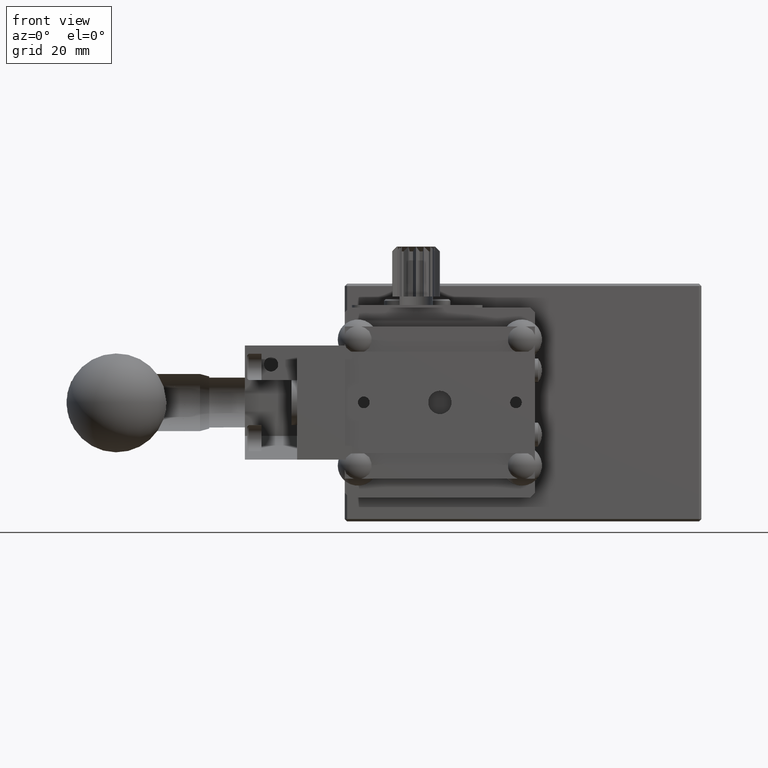
[diagram: clean part render]
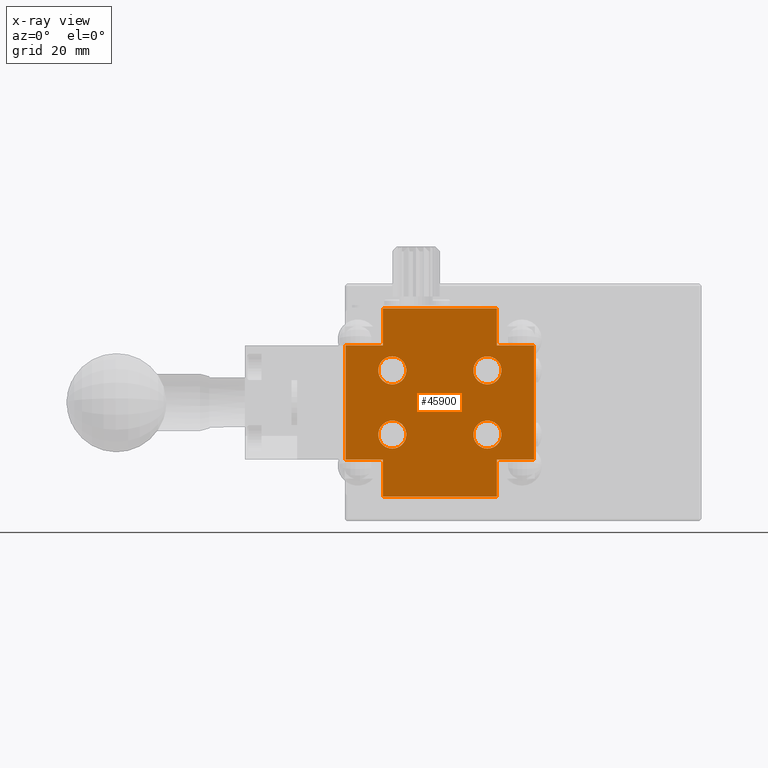
[diagram: x-ray — body ghosted, one internal face saturated and labeled with its STEP entity id]
A machine part, front view, then the same camera in x-ray: the body is ghosted and one INTERNAL B-rep face — a face not visible from any outside direction — is saturated and labeled: STEP entity #45900.
In plain terms, the highlighted planar face has unit normal (0, 1, 0).
Its self-contained STEP definition (entity closure, byte-faithful):
#119 = VECTOR ( 'NONE', #47549, 1000.000000000000000 ) ;
#504 = CARTESIAN_POINT ( 'NONE',  ( 51.00000000000000711, 19.20000000000000284, 6.750000000000000000 ) ) ;
#517 = EDGE_CURVE ( 'NONE', #6713, #27407, #34906, .T. ) ;
#562 = CARTESIAN_POINT ( 'NONE',  ( 53.00000000000000711, 19.19999999999999929, 12.00000000000000000 ) ) ;
#620 = VERTEX_POINT ( 'NONE', #562 ) ;
#1569 = EDGE_CURVE ( 'NONE', #45919, #45919, #10629, .T. ) ;
#2156 = CARTESIAN_POINT ( 'NONE',  ( 29.00000000000000000, 19.19999999999999929, 19.80000000000000426 ) ) ;
#2213 = VERTEX_POINT ( 'NONE', #19950 ) ;
#3014 = DIRECTION ( 'NONE',  ( -1.000000000000000000, -0.000000000000000000, 0.000000000000000000 ) ) ;
#3037 = EDGE_CURVE ( 'NONE', #620, #10244, #10017, .T. ) ;
#3622 = DIRECTION ( 'NONE',  ( 0.000000000000000000, -0.000000000000000000, 1.000000000000000000 ) ) ;
#3675 = EDGE_LOOP ( 'NONE', ( #9337 ) ) ;
#3686 = ORIENTED_EDGE ( 'NONE', *, *, #6543, .T. ) ;
#4169 = CIRCLE ( 'NONE', #9714, 2.950000000000000178 ) ;
#4376 = VERTEX_POINT ( 'NONE', #27244 ) ;
#4764 = VERTEX_POINT ( 'NONE', #2156 ) ;
#6011 = VERTEX_POINT ( 'NONE', #28815 ) ;
#6092 = EDGE_CURVE ( 'NONE', #39571, #620, #29775, .T. ) ;
#6543 = EDGE_CURVE ( 'NONE', #44015, #6713, #36404, .T. ) ;
#6713 = VERTEX_POINT ( 'NONE', #10626 ) ;
#6724 = CARTESIAN_POINT ( 'NONE',  ( 53.00000000000000711, 19.19999999999999929, 19.80000000000000071 ) ) ;
#7545 = DIRECTION ( 'NONE',  ( 0.000000000000000000, -1.000000000000000000, 0.000000000000000000 ) ) ;
#7888 = VERTEX_POINT ( 'NONE', #38559 ) ;
#8049 = CARTESIAN_POINT ( 'NONE',  ( 21.20000000000000284, 19.19999999999999929, -12.00000000000000000 ) ) ;
#8439 = DIRECTION ( 'NONE',  ( 0.000000000000000000, 0.000000000000000000, -1.000000000000000000 ) ) ;
#8538 = DIRECTION ( 'NONE',  ( 0.000000000000000000, 0.000000000000000000, -1.000000000000000000 ) ) ;
#8995 = CARTESIAN_POINT ( 'NONE',  ( 31.00000000000000000, 19.20000000000000284, -9.700000000000001066 ) ) ;
#9337 = ORIENTED_EDGE ( 'NONE', *, *, #21554, .T. ) ;
#9518 = DIRECTION ( 'NONE',  ( 1.000000000000000000, 0.000000000000000000, -0.000000000000000000 ) ) ;
#9625 = EDGE_LOOP ( 'NONE', ( #23857 ) ) ;
#9714 = AXIS2_PLACEMENT_3D ( 'NONE', #16217, #7545, #8538 ) ;
#9804 = EDGE_CURVE ( 'NONE', #6011, #4764, #37514, .T. ) ;
#10017 = LINE ( 'NONE', #21674, #17594 ) ;
#10244 = VERTEX_POINT ( 'NONE', #38530 ) ;
#10626 = CARTESIAN_POINT ( 'NONE',  ( 53.00000000000000711, 19.19999999999999929, -12.00000000000000000 ) ) ;
#10629 = CIRCLE ( 'NONE', #38265, 2.950000000000000178 ) ;
#11202 = VECTOR ( 'NONE', #26905, 1000.000000000000000 ) ;
#11810 = VECTOR ( 'NONE', #24957, 1000.000000000000000 ) ;
#11824 = CARTESIAN_POINT ( 'NONE',  ( 21.00000000000000000, 19.19999999999999929, 12.00000000000000000 ) ) ;
#11947 = DIRECTION ( 'NONE',  ( -1.000000000000000000, -0.000000000000000000, 0.000000000000000000 ) ) ;
#12650 = DIRECTION ( 'NONE',  ( 0.000000000000000000, -0.000000000000000000, 1.000000000000000000 ) ) ;
#13158 = CARTESIAN_POINT ( 'NONE',  ( 53.00000000000000711, 19.19999999999999929, 0.000000000000000000 ) ) ;
#13223 = VERTEX_POINT ( 'NONE', #8995 ) ;
#13565 = AXIS2_PLACEMENT_3D ( 'NONE', #16267, #16508, #38756 ) ;
#14453 = CARTESIAN_POINT ( 'NONE',  ( 60.79999999999999005, 19.20000000000000284, -12.00000000000000355 ) ) ;
#14698 = ORIENTED_EDGE ( 'NONE', *, *, #517, .T. ) ;
#16104 = AXIS2_PLACEMENT_3D ( 'NONE', #43310, #27492, #12650 ) ;
#16115 = FACE_BOUND ( 'NONE', #3675, .T. ) ;
#16217 = CARTESIAN_POINT ( 'NONE',  ( 31.00000000000000000, 19.20000000000000284, -6.750000000000000000 ) ) ;
#16267 = CARTESIAN_POINT ( 'NONE',  ( 31.00000000000000000, 19.20000000000000284, 6.750000000000000000 ) ) ;
#16508 = DIRECTION ( 'NONE',  ( 0.000000000000000000, -1.000000000000000000, 0.000000000000000000 ) ) ;
#16592 = FACE_OUTER_BOUND ( 'NONE', #38104, .T. ) ;
#17503 = AXIS2_PLACEMENT_3D ( 'NONE', #504, #30707, #8439 ) ;
#17594 = VECTOR ( 'NONE', #9518, 1000.000000000000000 ) ;
#18033 = LINE ( 'NONE', #33110, #11810 ) ;
#18320 = VECTOR ( 'NONE', #27433, 1000.000000000000000 ) ;
#18480 = EDGE_CURVE ( 'NONE', #4376, #2213, #34838, .T. ) ;
#18808 = EDGE_CURVE ( 'NONE', #28074, #28074, #30130, .T. ) ;
#19092 = VERTEX_POINT ( 'NONE', #47559 ) ;
#19211 = ORIENTED_EDGE ( 'NONE', *, *, #30172, .T. ) ;
#19385 = CARTESIAN_POINT ( 'NONE',  ( 53.00000000000000711, 19.19999999999999929, -19.80000000000000426 ) ) ;
#19887 = ORIENTED_EDGE ( 'NONE', *, *, #18480, .T. ) ;
#19950 = CARTESIAN_POINT ( 'NONE',  ( 29.00000000000000000, 19.19999999999999929, -12.00000000000000000 ) ) ;
#20490 = EDGE_CURVE ( 'NONE', #19092, #6011, #45742, .T. ) ;
#21127 = DIRECTION ( 'NONE',  ( 0.000000000000000000, -1.000000000000000000, 0.000000000000000000 ) ) ;
#21376 = VECTOR ( 'NONE', #11947, 1000.000000000000000 ) ;
#21554 = EDGE_CURVE ( 'NONE', #13223, #13223, #4169, .T. ) ;
#21674 = CARTESIAN_POINT ( 'NONE',  ( 21.00000000000000000, 19.19999999999999929, 12.00000000000000000 ) ) ;
#22586 = ORIENTED_EDGE ( 'NONE', *, *, #6092, .T. ) ;
#23857 = ORIENTED_EDGE ( 'NONE', *, *, #1569, .T. ) ;
#24010 = LINE ( 'NONE', #38848, #119 ) ;
#24957 = DIRECTION ( 'NONE',  ( 1.000000000000000000, 0.000000000000000000, -0.000000000000000000 ) ) ;
#26750 = ORIENTED_EDGE ( 'NONE', *, *, #20490, .T. ) ;
#26905 = DIRECTION ( 'NONE',  ( 1.000000000000000000, 0.000000000000000000, -0.000000000000000000 ) ) ;
#27244 = CARTESIAN_POINT ( 'NONE',  ( 29.00000000000000000, 19.19999999999999929, -19.80000000000000071 ) ) ;
#27309 = ORIENTED_EDGE ( 'NONE', *, *, #18808, .T. ) ;
#27399 = EDGE_CURVE ( 'NONE', #2213, #38349, #29997, .T. ) ;
#27407 = VERTEX_POINT ( 'NONE', #19385 ) ;
#27433 = DIRECTION ( 'NONE',  ( 0.000000000000000000, -0.000000000000000000, 1.000000000000000000 ) ) ;
#27492 = DIRECTION ( 'NONE',  ( 0.000000000000000000, 1.000000000000000000, 0.000000000000000000 ) ) ;
#27750 = ORIENTED_EDGE ( 'NONE', *, *, #34877, .T. ) ;
#28074 = VERTEX_POINT ( 'NONE', #31030 ) ;
#28222 = FACE_BOUND ( 'NONE', #9625, .T. ) ;
#28815 = CARTESIAN_POINT ( 'NONE',  ( 29.00000000000000000, 19.19999999999999929, 12.00000000000000000 ) ) ;
#29641 = ORIENTED_EDGE ( 'NONE', *, *, #39779, .T. ) ;
#29774 = CARTESIAN_POINT ( 'NONE',  ( 21.00000000000000000, 19.19999999999999929, -19.80000000000000071 ) ) ;
#29775 = LINE ( 'NONE', #48383, #41341 ) ;
#29997 = LINE ( 'NONE', #41614, #21376 ) ;
#30130 = CIRCLE ( 'NONE', #17503, 2.950000000000000178 ) ;
#30172 = EDGE_CURVE ( 'NONE', #10244, #44015, #48293, .T. ) ;
#30707 = DIRECTION ( 'NONE',  ( 0.000000000000000000, -1.000000000000000000, 0.000000000000000000 ) ) ;
#31030 = CARTESIAN_POINT ( 'NONE',  ( 51.00000000000000711, 19.20000000000000284, 3.799999999999999378 ) ) ;
#31672 = PLANE ( 'NONE',  #16104 ) ;
#32699 = CARTESIAN_POINT ( 'NONE',  ( 21.00000000000000000, 19.19999999999999929, -12.00000000000000000 ) ) ;
#33058 = ORIENTED_EDGE ( 'NONE', *, *, #9804, .T. ) ;
#33110 = CARTESIAN_POINT ( 'NONE',  ( 21.00000000000000000, 19.19999999999999929, 19.80000000000000071 ) ) ;
#33534 = VECTOR ( 'NONE', #35884, 1000.000000000000000 ) ;
#33880 = EDGE_LOOP ( 'NONE', ( #46462 ) ) ;
#34215 = DIRECTION ( 'NONE',  ( -0.000000000000000000, 0.000000000000000000, -1.000000000000000000 ) ) ;
#34838 = LINE ( 'NONE', #46275, #18320 ) ;
#34877 = EDGE_CURVE ( 'NONE', #4764, #39571, #18033, .T. ) ;
#34906 = LINE ( 'NONE', #13158, #47037 ) ;
#35606 = EDGE_LOOP ( 'NONE', ( #27309 ) ) ;
#35884 = DIRECTION ( 'NONE',  ( -0.000000000000000000, 0.000000000000000000, -1.000000000000000000 ) ) ;
#35955 = EDGE_CURVE ( 'NONE', #7888, #7888, #43570, .T. ) ;
#36291 = EDGE_CURVE ( 'NONE', #27407, #4376, #45135, .T. ) ;
#36368 = CARTESIAN_POINT ( 'NONE',  ( 60.79999999999999005, 19.19999999999999929, 0.000000000000000000 ) ) ;
#36404 = LINE ( 'NONE', #32699, #40608 ) ;
#37514 = LINE ( 'NONE', #41962, #41790 ) ;
#37952 = CARTESIAN_POINT ( 'NONE',  ( 51.00000000000000711, 19.20000000000000284, -9.700000000000001066 ) ) ;
#38104 = EDGE_LOOP ( 'NONE', ( #14698, #43080, #19887, #42480, #29641, #26750, #33058, #27750, #22586, #42190, #19211, #3686 ) ) ;
#38265 = AXIS2_PLACEMENT_3D ( 'NONE', #40140, #21127, #39656 ) ;
#38349 = VERTEX_POINT ( 'NONE', #8049 ) ;
#38530 = CARTESIAN_POINT ( 'NONE',  ( 60.79999999999999005, 19.20000000000000284, 12.00000000000000178 ) ) ;
#38559 = CARTESIAN_POINT ( 'NONE',  ( 31.00000000000000000, 19.20000000000000284, 3.799999999999999378 ) ) ;
#38756 = DIRECTION ( 'NONE',  ( 0.000000000000000000, 0.000000000000000000, -1.000000000000000000 ) ) ;
#38848 = CARTESIAN_POINT ( 'NONE',  ( 21.20000000000000284, 19.19999999999999929, 0.000000000000000000 ) ) ;
#39571 = VERTEX_POINT ( 'NONE', #6724 ) ;
#39656 = DIRECTION ( 'NONE',  ( 0.000000000000000000, 0.000000000000000000, -1.000000000000000000 ) ) ;
#39779 = EDGE_CURVE ( 'NONE', #38349, #19092, #24010, .T. ) ;
#40140 = CARTESIAN_POINT ( 'NONE',  ( 51.00000000000000711, 19.20000000000000284, -6.750000000000000000 ) ) ;
#40404 = VECTOR ( 'NONE', #44888, 1000.000000000000000 ) ;
#40608 = VECTOR ( 'NONE', #3014, 1000.000000000000000 ) ;
#41341 = VECTOR ( 'NONE', #34215, 1000.000000000000000 ) ;
#41614 = CARTESIAN_POINT ( 'NONE',  ( 21.00000000000000000, 19.19999999999999929, -12.00000000000000000 ) ) ;
#41790 = VECTOR ( 'NONE', #3622, 1000.000000000000000 ) ;
#41962 = CARTESIAN_POINT ( 'NONE',  ( 29.00000000000000000, 19.19999999999999929, 0.000000000000000000 ) ) ;
#42190 = ORIENTED_EDGE ( 'NONE', *, *, #3037, .T. ) ;
#42480 = ORIENTED_EDGE ( 'NONE', *, *, #27399, .T. ) ;
#43080 = ORIENTED_EDGE ( 'NONE', *, *, #36291, .T. ) ;
#43310 = CARTESIAN_POINT ( 'NONE',  ( 21.00000000000000000, 19.19999999999999929, 0.000000000000000000 ) ) ;
#43570 = CIRCLE ( 'NONE', #13565, 2.950000000000000178 ) ;
#44015 = VERTEX_POINT ( 'NONE', #14453 ) ;
#44888 = DIRECTION ( 'NONE',  ( -1.000000000000000000, -0.000000000000000000, 0.000000000000000000 ) ) ;
#45135 = LINE ( 'NONE', #29774, #40404 ) ;
#45742 = LINE ( 'NONE', #11824, #11202 ) ;
#45900 = ADVANCED_FACE ( 'NONE', ( #16592, #46559, #28222, #16115, #46328 ), #31672, .T. ) ;
#45919 = VERTEX_POINT ( 'NONE', #37952 ) ;
#46275 = CARTESIAN_POINT ( 'NONE',  ( 29.00000000000000000, 19.19999999999999929, 0.000000000000000000 ) ) ;
#46328 = FACE_BOUND ( 'NONE', #35606, .T. ) ;
#46462 = ORIENTED_EDGE ( 'NONE', *, *, #35955, .T. ) ;
#46559 = FACE_BOUND ( 'NONE', #33880, .T. ) ;
#47037 = VECTOR ( 'NONE', #47065, 1000.000000000000000 ) ;
#47065 = DIRECTION ( 'NONE',  ( -0.000000000000000000, 0.000000000000000000, -1.000000000000000000 ) ) ;
#47549 = DIRECTION ( 'NONE',  ( 0.000000000000000000, -0.000000000000000000, 1.000000000000000000 ) ) ;
#47559 = CARTESIAN_POINT ( 'NONE',  ( 21.20000000000000284, 19.20000000000000284, 12.00000000000000000 ) ) ;
#48293 = LINE ( 'NONE', #36368, #33534 ) ;
#48383 = CARTESIAN_POINT ( 'NONE',  ( 53.00000000000000711, 19.19999999999999929, 0.000000000000000000 ) ) ;